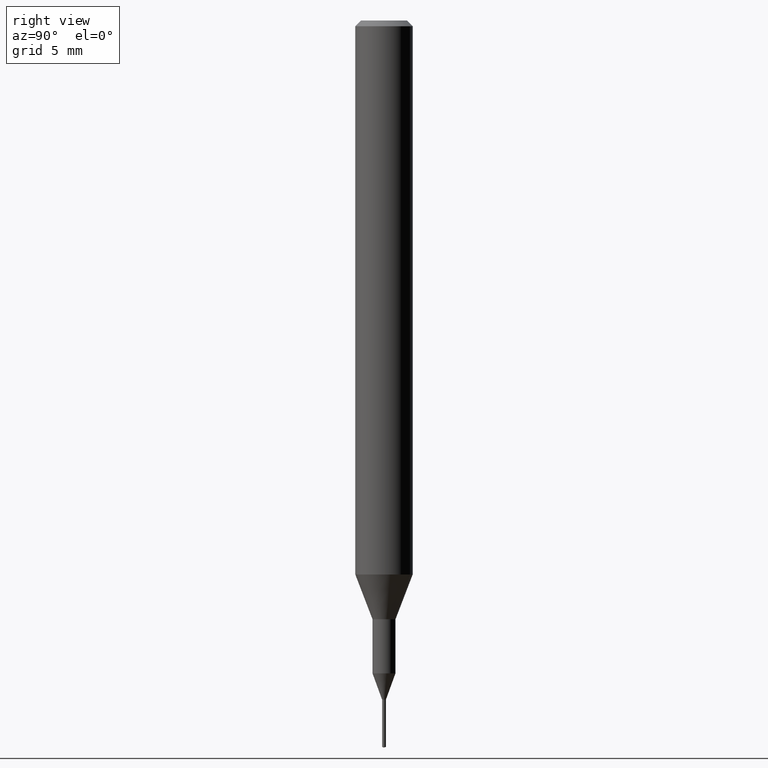
[diagram: clean part render]
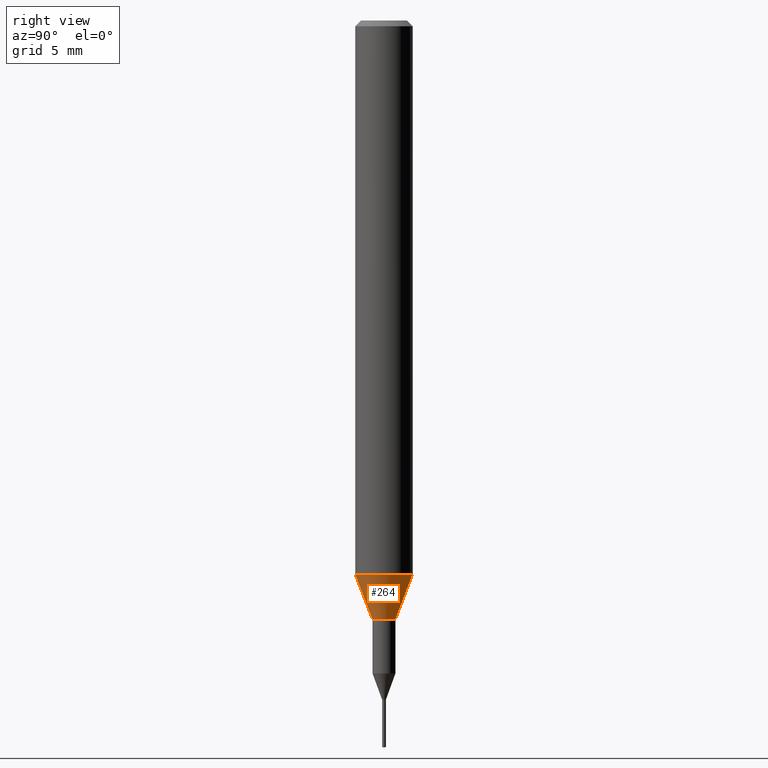
[diagram: same view with one face highlighted and labeled with its STEP entity id]
A machine part, right view. The second image highlights one B-rep face of the part: STEP entity #264.
In plain terms, the highlighted conical surface has half-angle 20.997 deg.
Its self-contained STEP definition (entity closure, byte-faithful):
#130=EDGE_CURVE('',#240,#162,#309,.T.);
#156=EDGE_CURVE('',#240,#198,#337,.T.);
#162=VERTEX_POINT('',#344);
#192=EDGE_CURVE('',#222,#162,#379,.T.);
#198=VERTEX_POINT('',#386);
#222=VERTEX_POINT('',#413);
#240=VERTEX_POINT('',#433);
#252=EDGE_CURVE('',#198,#222,#447,.T.);
#264=ADVANCED_FACE('',(#461),#462,.T.);
#309=CIRCLE('',#505,1.5);
#337=LINE('',#544,#545);
#344=CARTESIAN_POINT('',(1.83690953073357E-016,-1.5,-28.955));
#379=LINE('',#599,#600);
#386=CARTESIAN_POINT('',(0.0,0.6,-31.3));
#413=CARTESIAN_POINT('',(7.34763812293426E-017,-0.6,-31.3));
#433=CARTESIAN_POINT('',(0.0,1.5,-28.955));
#447=CIRCLE('',#684,0.6);
#461=FACE_OUTER_BOUND('',#700,.T.);
#462=CONICAL_SURFACE('',#701,1.05,0.366459241971866);
#505=AXIS2_PLACEMENT_3D('',#733,#734,#735);
#544=CARTESIAN_POINT('',(-1.2858366715135E-016,1.05,-30.1275));
#545=VECTOR('',#761,1.0);
#599=CARTESIAN_POINT('',(1.2858366715135E-016,-1.05,-30.1275));
#600=VECTOR('',#826,1.0);
#684=AXIS2_PLACEMENT_3D('',#908,#909,#910);
#700=EDGE_LOOP('',(#928,#929,#930,#931));
#701=AXIS2_PLACEMENT_3D('',#932,#933,#934);
#733=CARTESIAN_POINT('',(0.0,0.0,-28.955));
#734=DIRECTION('',(0.0,0.0,-1.0));
#735=DIRECTION('',(0.0,1.0,0.0));
#761=DIRECTION('',(4.38791184365088E-017,-0.358312026550805,-0.93360189140182));
#826=DIRECTION('',(4.38791184365088E-017,-0.358312026550805,0.93360189140182));
#908=CARTESIAN_POINT('',(0.0,0.0,-31.3));
#909=DIRECTION('',(0.0,0.0,-1.0));
#910=DIRECTION('',(0.0,1.0,0.0));
#928=ORIENTED_EDGE('',*,*,#156,.F.);
#929=ORIENTED_EDGE('',*,*,#130,.T.);
#930=ORIENTED_EDGE('',*,*,#192,.F.);
#931=ORIENTED_EDGE('',*,*,#252,.F.);
#932=CARTESIAN_POINT('',(0.0,0.0,-30.1275));
#933=DIRECTION('',(-0.0,-0.0,1.0));
#934=DIRECTION('',(0.0,1.0,0.0));